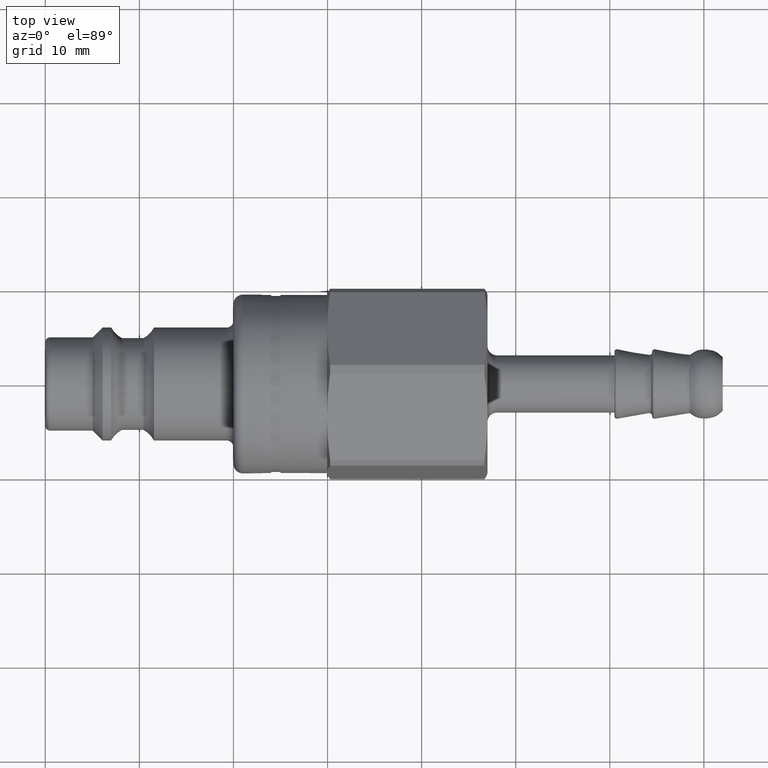
[diagram: clean part render]
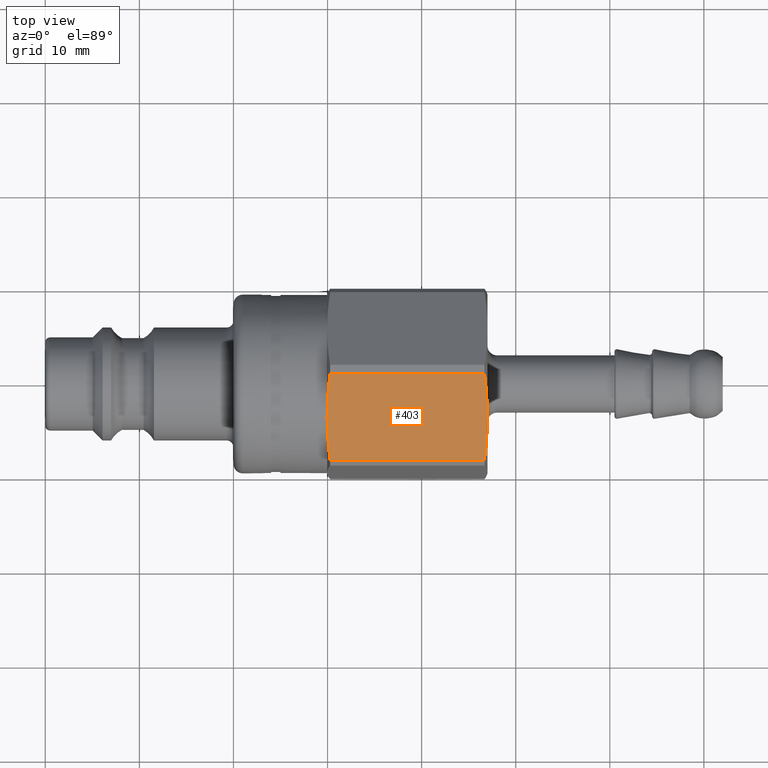
[diagram: same view with one face highlighted and labeled with its STEP entity id]
A machine part, top view. The second image highlights one B-rep face of the part: STEP entity #403.
In plain terms, the highlighted planar face has unit normal (0, 0.3843, -0.9232).
Its self-contained STEP definition (entity closure, byte-faithful):
#320=CARTESIAN_POINT('',(48.332985957617829,-3.650979347959865,8.770424721800566));
#321=DIRECTION('',(0.0,0.384313615574723,-0.923202602294797));
#322=DIRECTION('',(-1.0,0.0,0.0));
#323=AXIS2_PLACEMENT_3D('',#320,#321,#322);
#324=PLANE('',#323);
#325=CARTESIAN_POINT('',(46.678460969082643,0.894328761287005,10.6625595457533));
#326=VERTEX_POINT('',#325);
#327=CARTESIAN_POINT('',(46.999999999999986,-3.650979347959865,8.770424721800566));
#328=VERTEX_POINT('',#327);
#329=CARTESIAN_POINT('',(46.678460969082636,0.894328761287017,10.662559545753306));
#330=CARTESIAN_POINT('',(46.999999999999986,-1.513334445096209,9.660290109303103));
#331=CARTESIAN_POINT('',(46.999999999999986,-3.650979347959865,8.770424721800566));
#339=(BOUNDED_CURVE()B_SPLINE_CURVE(2,(#329,#330,#331),.UNSPECIFIED.,.F.,.U.)B_SPLINE_CURVE_WITH_KNOTS((3,3),(0.0,0.493628243022415),.UNSPECIFIED.)CURVE()GEOMETRIC_REPRESENTATION_ITEM()RATIONAL_B_SPLINE_CURVE((1.0,1.031095482841817,1.0))REPRESENTATION_ITEM(''));
#340=EDGE_CURVE('',#326,#328,#339,.T.);
#341=ORIENTED_EDGE('',*,*,#340,.F.);
#342=CARTESIAN_POINT('',(30.271539030917332,0.894328761287005,10.6625595457533));
#343=VERTEX_POINT('',#342);
#344=CARTESIAN_POINT('',(30.271539030917328,0.894328761287005,10.6625595457533));
#345=DIRECTION('',(1.0,0.0,0.0));
#346=VECTOR('',#345,16.406921938165315);
#347=LINE('',#344,#346);
#348=EDGE_CURVE('',#343,#326,#347,.T.);
#349=ORIENTED_EDGE('',*,*,#348,.F.);
#350=CARTESIAN_POINT('',(29.949999999999982,-3.650979347959865,8.770424721800566));
#351=VERTEX_POINT('',#350);
#352=CARTESIAN_POINT('',(29.949999999999992,-3.650979347959865,8.770424721800566));
#353=CARTESIAN_POINT('',(29.949999999999982,-1.513334445096235,9.660290109303091));
#354=CARTESIAN_POINT('',(30.271539030917332,0.894328761286974,10.66255954575329));
#362=(BOUNDED_CURVE()B_SPLINE_CURVE(2,(#352,#353,#354),.UNSPECIFIED.,.F.,.U.)B_SPLINE_CURVE_WITH_KNOTS((3,3),(0.493628243022411,0.987256486044822),.UNSPECIFIED.)CURVE()GEOMETRIC_REPRESENTATION_ITEM()RATIONAL_B_SPLINE_CURVE((1.0,1.03109548284179,1.0))REPRESENTATION_ITEM(''));
#363=EDGE_CURVE('',#351,#343,#362,.T.);
#364=ORIENTED_EDGE('',*,*,#363,.F.);
#365=CARTESIAN_POINT('',(30.271539030917332,-8.196287457206735,6.878289897847835));
#366=VERTEX_POINT('',#365);
#367=CARTESIAN_POINT('',(30.271539030917332,-8.196287457206704,6.878289897847846));
#368=CARTESIAN_POINT('',(29.949999999999982,-5.788624250823497,7.880559334298043));
#369=CARTESIAN_POINT('',(29.949999999999992,-3.650979347959865,8.770424721800566));
#377=(BOUNDED_CURVE()B_SPLINE_CURVE(2,(#367,#368,#369),.UNSPECIFIED.,.F.,.U.)B_SPLINE_CURVE_WITH_KNOTS((3,3),(0.0,0.493628243022411),.UNSPECIFIED.)CURVE()GEOMETRIC_REPRESENTATION_ITEM()RATIONAL_B_SPLINE_CURVE((1.0,1.031095482841793,1.0))REPRESENTATION_ITEM(''));
#378=EDGE_CURVE('',#366,#351,#377,.T.);
#379=ORIENTED_EDGE('',*,*,#378,.F.);
#380=CARTESIAN_POINT('',(46.678460969082643,-8.196287457206735,6.878289897847835));
#381=VERTEX_POINT('',#380);
#382=CARTESIAN_POINT('',(46.678460969082643,-8.196287457206735,6.878289897847835));
#383=DIRECTION('',(-1.0,0.0,0.0));
#384=VECTOR('',#383,16.406921938165315);
#385=LINE('',#382,#384);
#386=EDGE_CURVE('',#381,#366,#385,.T.);
#387=ORIENTED_EDGE('',*,*,#386,.F.);
#388=CARTESIAN_POINT('',(46.999999999999986,-3.650979347959865,8.770424721800566));
#389=CARTESIAN_POINT('',(46.999999999999986,-5.788624250823521,7.880559334298033));
#390=CARTESIAN_POINT('',(46.678460969082636,-8.196287457206747,6.87828989784783));
#398=(BOUNDED_CURVE()B_SPLINE_CURVE(2,(#388,#389,#390),.UNSPECIFIED.,.F.,.U.)B_SPLINE_CURVE_WITH_KNOTS((3,3),(0.493628243022415,0.987256486044831),.UNSPECIFIED.)CURVE()GEOMETRIC_REPRESENTATION_ITEM()RATIONAL_B_SPLINE_CURVE((1.0,1.031095482841807,1.0))REPRESENTATION_ITEM(''));
#399=EDGE_CURVE('',#328,#381,#398,.T.);
#400=ORIENTED_EDGE('',*,*,#399,.F.);
#401=EDGE_LOOP('',(#341,#349,#364,#379,#387,#400));
#402=FACE_OUTER_BOUND('',#401,.T.);
#403=ADVANCED_FACE('',(#402),#324,.F.);